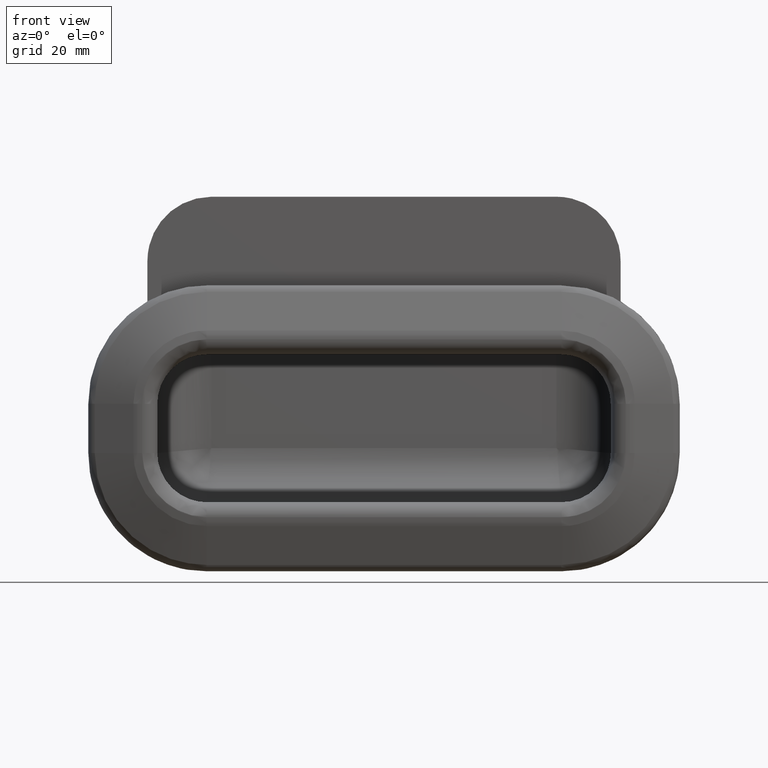
[diagram: clean part render]
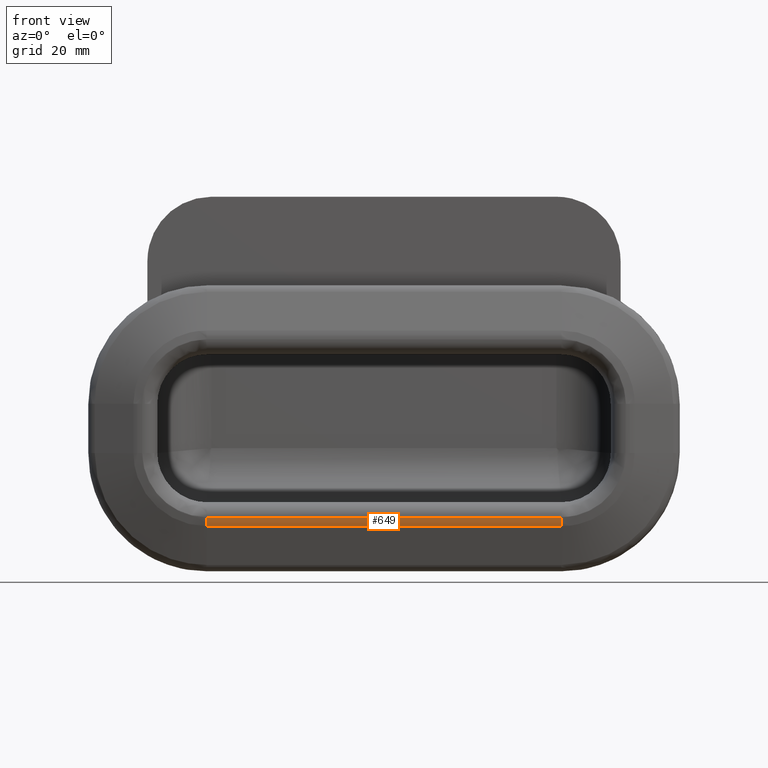
[diagram: same view with one face highlighted and labeled with its STEP entity id]
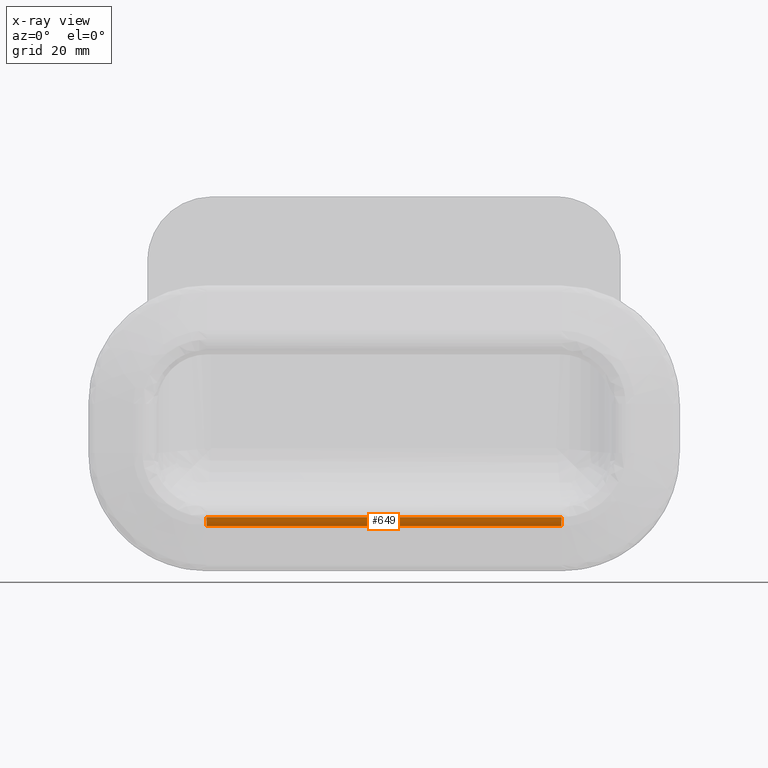
[diagram: x-ray of the same camera — body ghosted, the highlighted face saturated]
A machine part, front view. The second image highlights one B-rep face of the part: STEP entity #649.
The next image is the same camera in x-ray: the body ghosted, the highlighted face saturated — about 0% of this face is hidden behind the body in this view.
In plain terms, the highlighted face is a freeform B-spline surface patch.
Its self-contained STEP definition (entity closure, byte-faithful):
#497=CARTESIAN_POINT('',(36.0,0.0,-18.095591506635149));
#498=VERTEX_POINT('',#497);
#499=CARTESIAN_POINT('',(36.0,0.316816235697227,-19.847102234484399));
#500=VERTEX_POINT('',#499);
#501=CARTESIAN_POINT('',(36.0,0.0,-18.095591506635149));
#502=CARTESIAN_POINT('',(36.0,0.0,-18.999999999999819));
#503=CARTESIAN_POINT('',(36.0,0.316816235697234,-19.847102234484399));
#511=(BOUNDED_CURVE()B_SPLINE_CURVE(2,(#501,#502,#503),.UNSPECIFIED.,.F.,.U.)CURVE()GEOMETRIC_REPRESENTATION_ITEM()QUASI_UNIFORM_CURVE()RATIONAL_B_SPLINE_CURVE((1.0,0.984031694830139,1.0))REPRESENTATION_ITEM(''));
#512=EDGE_CURVE('',#498,#500,#511,.T.);
#605=CARTESIAN_POINT('',(-37.800000000000018,0.348605971482871,-19.929858006213440));
#606=CARTESIAN_POINT('',(37.845000000000013,0.348605971482871,-19.929858006213440));
#607=CARTESIAN_POINT('',(-37.800000000000018,-0.016947252433699,-19.002875976491129));
#608=CARTESIAN_POINT('',(37.845000000000013,-0.016947252433699,-19.002875976491129));
#609=CARTESIAN_POINT('',(-37.800000000000018,0.000792407600252,-18.006577754367964));
#610=CARTESIAN_POINT('',(37.845000000000020,0.000792407600252,-18.006577754367964));
#618=(BOUNDED_SURFACE()B_SPLINE_SURFACE(1,2,((#605,#607,#609),(#606,#608,#610)),.UNSPECIFIED.,.F.,.F.,.U.)B_SPLINE_SURFACE_WITH_KNOTS((2,2),(3,3),(0.0,75.645000000000039),(0.0,1.973505322085063),.UNSPECIFIED.)GEOMETRIC_REPRESENTATION_ITEM()RATIONAL_B_SPLINE_SURFACE(((0.998054811290019,0.976700140426848,0.993763977443122),(0.998054811290019,0.976700140426848,0.993763977443122)))REPRESENTATION_ITEM('')SURFACE());
#619=CARTESIAN_POINT('',(-36.0,0.0,-18.095591506635149));
#620=VERTEX_POINT('',#619);
#621=CARTESIAN_POINT('',(-36.0,0.316816235697227,-19.847102234484399));
#622=VERTEX_POINT('',#621);
#623=CARTESIAN_POINT('',(-36.0,0.0,-18.095591506635149));
#624=CARTESIAN_POINT('',(-36.0,0.0,-18.999999999999819));
#625=CARTESIAN_POINT('',(-36.0,0.316816235697234,-19.847102234484399));
#633=(BOUNDED_CURVE()B_SPLINE_CURVE(2,(#623,#624,#625),.UNSPECIFIED.,.F.,.U.)CURVE()GEOMETRIC_REPRESENTATION_ITEM()QUASI_UNIFORM_CURVE()RATIONAL_B_SPLINE_CURVE((1.0,0.984031694830139,1.0))REPRESENTATION_ITEM(''));
#634=EDGE_CURVE('',#620,#622,#633,.T.);
#635=ORIENTED_EDGE('',*,*,#634,.T.);
#636=CARTESIAN_POINT('',(36.0,0.316816235697227,-19.847102234484399));
#637=CARTESIAN_POINT('',(-36.0,0.316816235697227,-19.847102234484399));
#638=QUASI_UNIFORM_CURVE('',1,(#636,#637),.UNSPECIFIED.,.F.,.U.);
#639=EDGE_CURVE('',#500,#622,#638,.T.);
#640=ORIENTED_EDGE('',*,*,#639,.F.);
#641=ORIENTED_EDGE('',*,*,#512,.F.);
#642=CARTESIAN_POINT('',(-36.0,0.0,-18.095591506635149));
#643=CARTESIAN_POINT('',(36.0,0.0,-18.095591506635149));
#644=QUASI_UNIFORM_CURVE('',1,(#642,#643),.UNSPECIFIED.,.F.,.U.);
#645=EDGE_CURVE('',#620,#498,#644,.T.);
#646=ORIENTED_EDGE('',*,*,#645,.F.);
#647=EDGE_LOOP('',(#635,#640,#641,#646));
#648=FACE_OUTER_BOUND('',#647,.T.);
#649=ADVANCED_FACE('',(#648),#618,.T.);